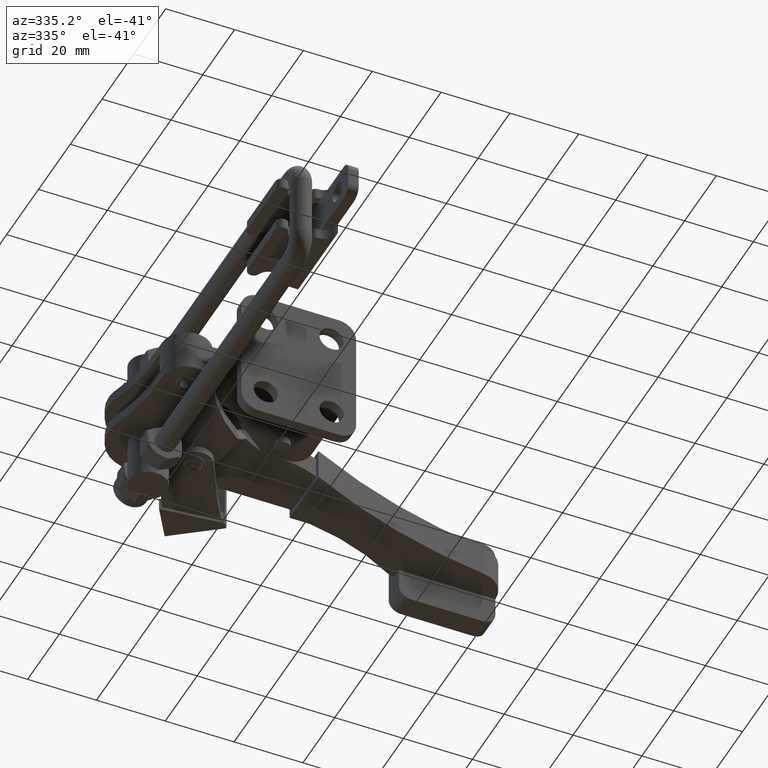
[diagram: clean part render]
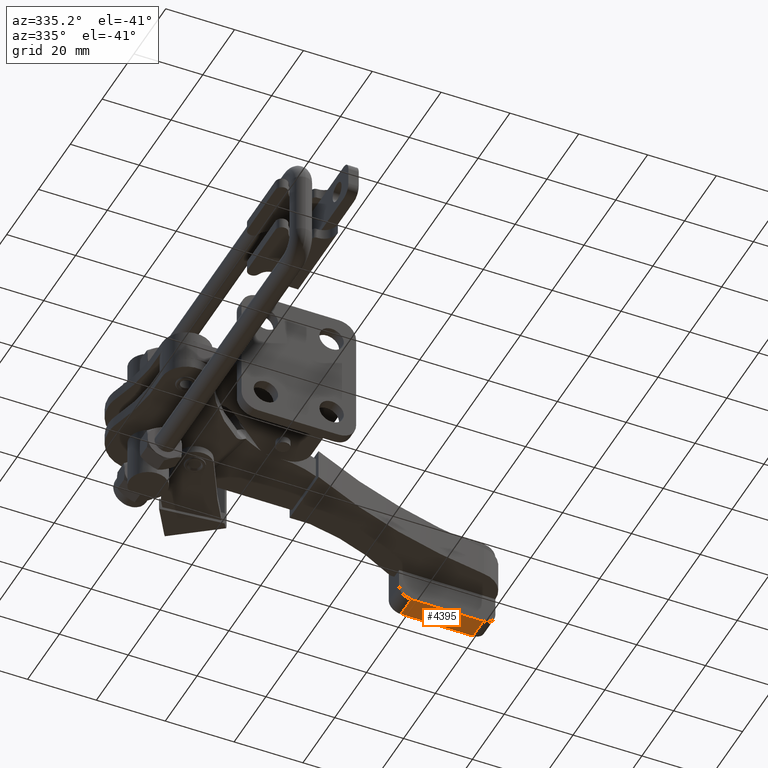
[diagram: same view with one face highlighted and labeled with its STEP entity id]
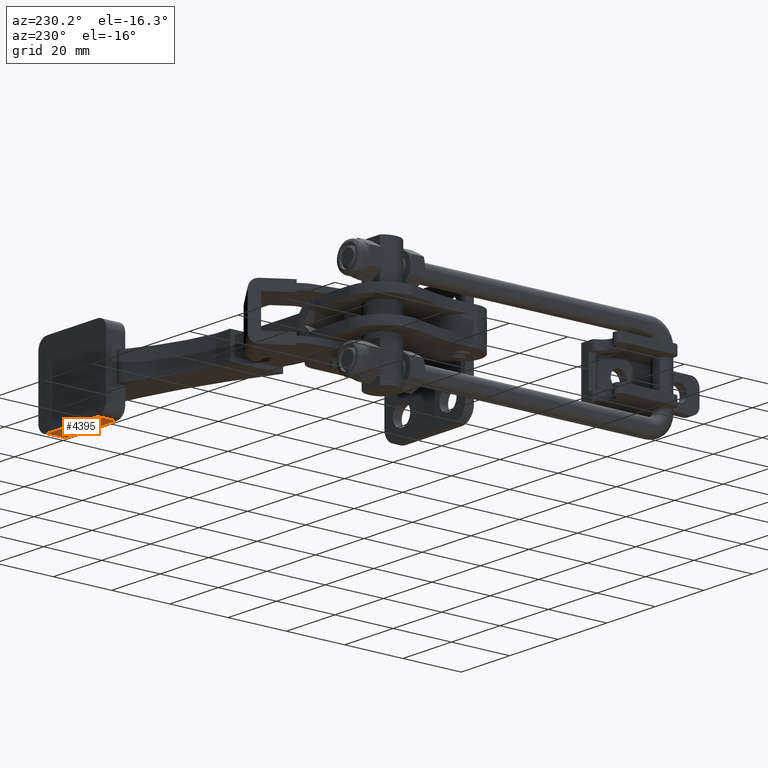
[diagram: same view with one face highlighted and labeled with its STEP entity id]
A machine part, auxiliary view. The second image highlights one B-rep face of the part: STEP entity #4395.
A second angle (auxiliary view) of the same face is appended — the face is thin or edge-on in the first view.
In plain terms, the highlighted planar face has unit normal (0, -0, -1).
Its self-contained STEP definition (entity closure, byte-faithful):
#65 = DIRECTION ( 'NONE',  ( 0.9999999985005816300, 5.476163367303976700E-005, 7.297604393941121200E-017 ) ) ;
#103 = CARTESIAN_POINT ( 'NONE',  ( 43.19369520010674500, 58.89876786998964100, -13.50112265939314100 ) ) ;
#660 = VERTEX_POINT ( 'NONE', #13187 ) ;
#1108 = EDGE_LOOP ( 'NONE', ( #4441, #10644, #12347, #8704 ) ) ;
#1115 = EDGE_CURVE ( 'NONE', #11297, #660, #12944, .T. ) ;
#2040 = LINE ( 'NONE', #2946, #4674 ) ;
#2292 = VECTOR ( 'NONE', #65, 1000.000000000000200 ) ;
#2647 = LINE ( 'NONE', #103, #2292 ) ;
#2874 = DIRECTION ( 'NONE',  ( 0.9999999985005816300, 5.476163367303976700E-005, 7.297604393941121200E-017 ) ) ;
#2946 = CARTESIAN_POINT ( 'NONE',  ( 64.19369516861897300, 58.89991786429677500, -13.50112265939315400 ) ) ;
#2981 = VECTOR ( 'NONE', #2874, 1000.000000000000200 ) ;
#4291 = DIRECTION ( 'NONE',  ( 5.476163367303976700E-005, -0.9999999985005816300, 5.525438112008569700E-015 ) ) ;
#4305 = VECTOR ( 'NONE', #10819, 1000.000000000000200 ) ;
#4346 = DIRECTION ( 'NONE',  ( 7.327862584776250400E-017, -5.525434107436243500E-015, -1.000000000000000000 ) ) ;
#4395 = ADVANCED_FACE ( 'NONE', ( #8870 ), #4869, .T. ) ;
#4396 = CARTESIAN_POINT ( 'NONE',  ( 43.19369520010674500, 58.89876786998964100, -13.50112265939314100 ) ) ;
#4441 = ORIENTED_EDGE ( 'NONE', *, *, #8773, .F. ) ;
#4674 = VECTOR ( 'NONE', #13025, 1000.000000000000200 ) ;
#4869 = PLANE ( 'NONE',  #10427 ) ;
#5719 = EDGE_CURVE ( 'NONE', #11297, #13876, #2647, .T. ) ;
#6793 = CARTESIAN_POINT ( 'NONE',  ( 64.19369516861897300, 58.89991786429677500, -13.50112265939315400 ) ) ;
#7072 = CARTESIAN_POINT ( 'NONE',  ( 64.19333921800007700, 65.39991785455055200, -13.50112265939318900 ) ) ;
#7253 = EDGE_CURVE ( 'NONE', #660, #8555, #11973, .T. ) ;
#8555 = VERTEX_POINT ( 'NONE', #7072 ) ;
#8704 = ORIENTED_EDGE ( 'NONE', *, *, #7253, .T. ) ;
#8773 = EDGE_CURVE ( 'NONE', #13876, #8555, #2040, .T. ) ;
#8870 = FACE_OUTER_BOUND ( 'NONE', #1108, .T. ) ;
#9168 = CARTESIAN_POINT ( 'NONE',  ( 43.19369520010674500, 58.89876786998964100, -13.50112265939314100 ) ) ;
#9666 = CARTESIAN_POINT ( 'NONE',  ( 43.19333924948786300, 65.39876786024341000, -13.50112265939317700 ) ) ;
#10427 = AXIS2_PLACEMENT_3D ( 'NONE', #4396, #4346, #4291 ) ;
#10644 = ORIENTED_EDGE ( 'NONE', *, *, #5719, .F. ) ;
#10819 = DIRECTION ( 'NONE',  ( -5.476163367303976700E-005, 0.9999999985005816300, -5.525438112008569700E-015 ) ) ;
#11297 = VERTEX_POINT ( 'NONE', #13890 ) ;
#11973 = LINE ( 'NONE', #9666, #2981 ) ;
#12347 = ORIENTED_EDGE ( 'NONE', *, *, #1115, .T. ) ;
#12944 = LINE ( 'NONE', #9168, #4305 ) ;
#13025 = DIRECTION ( 'NONE',  ( -5.476163367303976700E-005, 0.9999999985005816300, -5.525438112008569700E-015 ) ) ;
#13187 = CARTESIAN_POINT ( 'NONE',  ( 43.19333924948786300, 65.39876786024341000, -13.50112265939317700 ) ) ;
#13876 = VERTEX_POINT ( 'NONE', #6793 ) ;
#13890 = CARTESIAN_POINT ( 'NONE',  ( 43.19369520010674500, 58.89876786998964100, -13.50112265939314100 ) ) ;